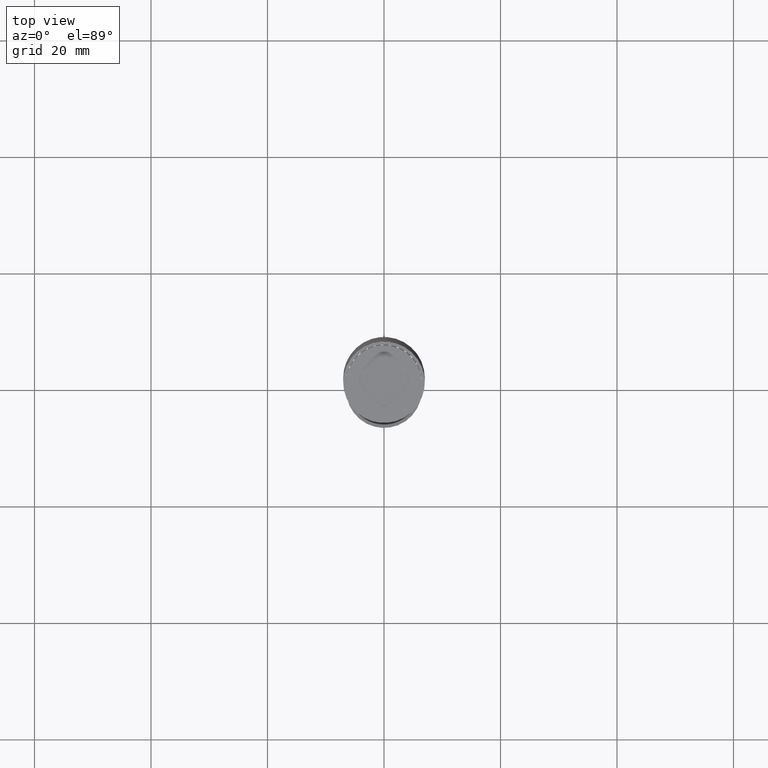
[diagram: clean part render]
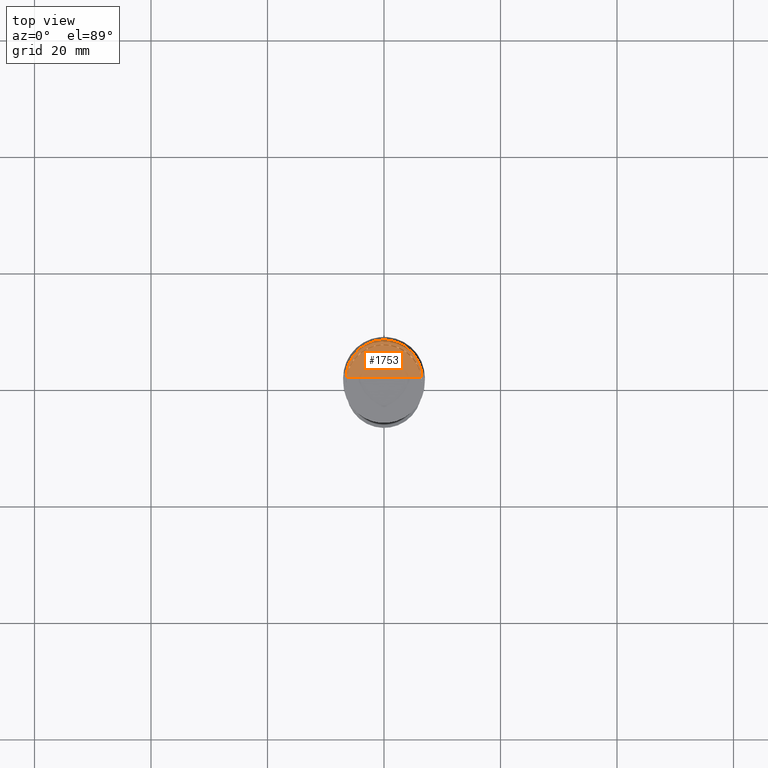
[diagram: same view with one face highlighted and labeled with its STEP entity id]
A machine part, top view. The second image highlights one B-rep face of the part: STEP entity #1753.
In plain terms, the highlighted face is a freeform B-spline surface patch.
Its self-contained STEP definition (entity closure, byte-faithful):
#1488=CARTESIAN_POINT('',(6.5,0.0,45.0));
#1489=CARTESIAN_POINT('',(6.5,6.5,45.0));
#1490=CARTESIAN_POINT('',(0.0,6.5,45.0));
#1491=CARTESIAN_POINT('',(-6.5,6.5,45.0));
#1492=CARTESIAN_POINT('',(-6.5,0.0,45.0));
#1493=CARTESIAN_POINT('',(0.0,0.0,45.0));
#1738=(
BOUNDED_SURFACE()
B_SPLINE_SURFACE(1,2,(
(#1488,#1489,#1490,#1491,#1492),
(#1493,#1493,#1493,#1493,#1493)
), .UNSPECIFIED.,.F.,.F.,.F.)
B_SPLINE_SURFACE_WITH_KNOTS((2,2),(3,2,3),(
0.0,1.0),(
0.0,0.5,1.0), .UNSPECIFIED.)
GEOMETRIC_REPRESENTATION_ITEM()
RATIONAL_B_SPLINE_SURFACE(((1.0,0.707106781187,1.0,0.707106781187,1.0),
(1.0,0.707106781187,1.0,0.707106781187,1.0)
))
REPRESENTATION_ITEM('')
SURFACE()
);
#1739=(
BOUNDED_CURVE()
B_SPLINE_CURVE(2,(#1492,#1491,#1490,#1489,#1488),.UNSPECIFIED.,.F.,.F.)
B_SPLINE_CURVE_WITH_KNOTS((3,2,3),
(0.0,0.5,1.0),.UNSPECIFIED.)
CURVE()
GEOMETRIC_REPRESENTATION_ITEM()
RATIONAL_B_SPLINE_CURVE((1.0,0.707106781187,1.0,0.707106781187,1.0))
REPRESENTATION_ITEM('')
);
#1740=(
BOUNDED_CURVE()
B_SPLINE_CURVE(1,(#1488,#1493),.UNSPECIFIED.,.F.,.F.)
B_SPLINE_CURVE_WITH_KNOTS((2,2),
(0.0,1.0),.UNSPECIFIED.)
CURVE()
GEOMETRIC_REPRESENTATION_ITEM()
RATIONAL_B_SPLINE_CURVE((1.0,1.0))
REPRESENTATION_ITEM('')
);
#1741=(
BOUNDED_CURVE()
B_SPLINE_CURVE(1,(#1493,#1492),.UNSPECIFIED.,.F.,.F.)
B_SPLINE_CURVE_WITH_KNOTS((2,2),
(0.0,1.0),.UNSPECIFIED.)
CURVE()
GEOMETRIC_REPRESENTATION_ITEM()
RATIONAL_B_SPLINE_CURVE((1.0,1.0))
REPRESENTATION_ITEM('')
);
#1742=VERTEX_POINT('',#1488);
#1743=VERTEX_POINT('',#1492);
#1744=VERTEX_POINT('',#1493);
#1745=EDGE_CURVE('',#1743,#1742,#1739,.T.);
#1746=EDGE_CURVE('',#1742,#1744,#1740,.T.);
#1747=EDGE_CURVE('',#1744,#1743,#1741,.T.);
#1748=ORIENTED_EDGE('',*,*,#1745,.T.);
#1749=ORIENTED_EDGE('',*,*,#1746,.T.);
#1750=ORIENTED_EDGE('',*,*,#1747,.T.);
#1751=EDGE_LOOP('',(#1748,#1749,#1750));
#1752=FACE_OUTER_BOUND('',#1751,.T.);
#1753=ADVANCED_FACE('',(#1752),#1738,.T.);